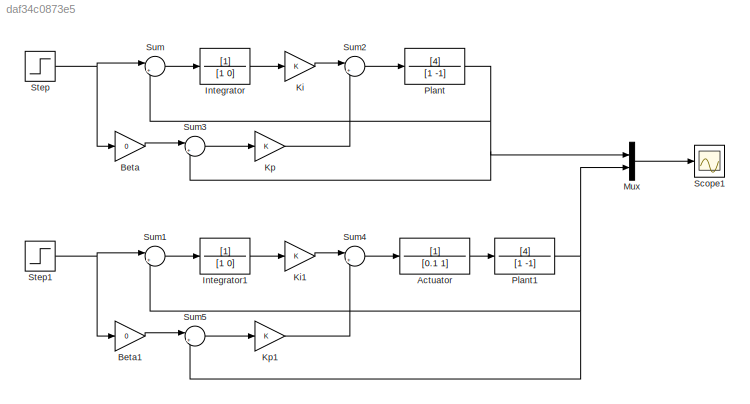
MODEL slx_daf34c0873e5
KIND model
CONFIG AbsTol = auto
CONFIG EnableMultiTasking = off
CONFIG FixedStep = auto
CONFIG MaxStep = auto
CONFIG MinStep = auto
CONFIG RelTol = 1e-3
CONFIG SampleTimeConstraint = Unconstrained
CONFIG SolverName = VariableStepAuto
CONFIG StartTime = 0.0
CONFIG StopTime = 10.0
BLOCK [TransferFcn] Actuator
  Denominator = [0.1 1]
BLOCK [Gain] Beta
  Gain = 0
BLOCK [Gain] Beta1
  Gain = 0
BLOCK [TransferFcn] Integrator
  Denominator = [1 0]
BLOCK [TransferFcn] Integrator1
  Denominator = [1 0]
BLOCK [Gain] Ki
BLOCK [Gain] Ki1
BLOCK [Gain] Kp
BLOCK [Gain] Kp1
BLOCK [Mux] Mux
  DisplayOption = bar
  Inputs = 2
BLOCK [TransferFcn] Plant
  Denominator = [1 -1]
  Numerator = [4]
BLOCK [TransferFcn] Plant1
  Denominator = [1 -1]
  Numerator = [4]
BLOCK [Scope] Scope1
  Floating = off
  NumInputPorts = 1
  ScopeSpecificationString = Simulink.scopes.TimeScopeBlockCfg('CurrentConfiguration', extmgr.ConfigurationSet(extmgr.Configuration('Core','General UI',true),extmgr.Configuration('Core','Source UI',true),extmgr.Configuration('Sources','WiredSimulink',true,'DataLoggingVariableName','ScopeData1'),extmgr.Configuration('Visuals','Time Domain',true,'SerializedDisplays',{struct('MinYLimReal','-0.12853','MaxYLimReal','1.1568','YLabe...<+1755ch>
BLOCK [Step] Step
  SampleTime = 0
BLOCK [Step] Step1
  SampleTime = 0
BLOCK [Sum] Sum
  Inputs = |+-
BLOCK [Sum] Sum1
  Inputs = |+-
BLOCK [Sum] Sum2
  Inputs = |++
BLOCK [Sum] Sum3
  Inputs = |+-
BLOCK [Sum] Sum4
  Inputs = |++
BLOCK [Sum] Sum5
  Inputs = |+-
LINE Actuator:1 -> Plant1:1
LINE Beta1:1 -> Sum5:1
LINE Beta:1 -> Sum3:1
LINE Integrator1:1 -> Ki1:1
LINE Integrator:1 -> Ki:1
LINE Ki1:1 -> Sum4:1
LINE Ki:1 -> Sum2:1
LINE Kp1:1 -> Sum4:2
LINE Kp:1 -> Sum2:2
LINE Mux:1 -> Scope1:1
NET Plant1:1 -> Mux:2, Sum1:2, Sum5:2
NET Plant:1 -> Mux:1, Sum3:2, Sum:2
NET Step1:1 -> Beta1:1, Sum1:1
NET Step:1 -> Beta:1, Sum:1
LINE Sum1:1 -> Integrator1:1
LINE Sum2:1 -> Plant:1
LINE Sum3:1 -> Kp:1
LINE Sum4:1 -> Actuator:1
LINE Sum5:1 -> Kp1:1
LINE Sum:1 -> Integrator:1
note: NET lines group one-source signal fan-out (src -> all destinations, sorted); 1:1 wires keep LINE
